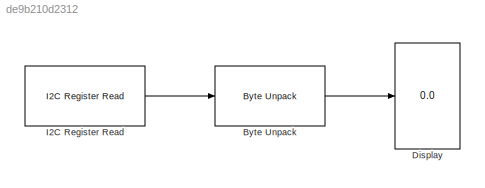
MODEL slx_de9b210d2312
KIND model
CONFIG AbsTol = auto
CONFIG EnableMultiTasking = on
CONFIG FixedStep = auto
CONFIG MaxStep = auto
CONFIG MinStep = auto
CONFIG RelTol = 1e-3
CONFIG SampleTimeConstraint = Unconstrained
CONFIG SolverName = ode45
CONFIG StartTime = 0.0
CONFIG StopTime = 10.0
BLOCK [Reference] Byte Unpack  REF=etargetslib/Byte Unpack
  Ports = [1, 1]
  SourceBlock = etargetslib/Byte Unpack
  SourceProductBaseCode = ME
  SourceType = Byte Unpack
BLOCK [Display] Display
  Decimation = 1
  Ports = [1]
BLOCK [Reference] I2C Register Read  REF=legoev3lib/I2C Register Read
  Ports = [0, 1]
  SourceBlock = legoev3lib/I2C Register Read
  SourceProductBaseCode = LEGOEV3
  SourceType = ev3.I2CRead
LINE Byte Unpack:1 -> Display:1
LINE I2C Register Read:1 -> Byte Unpack:1
